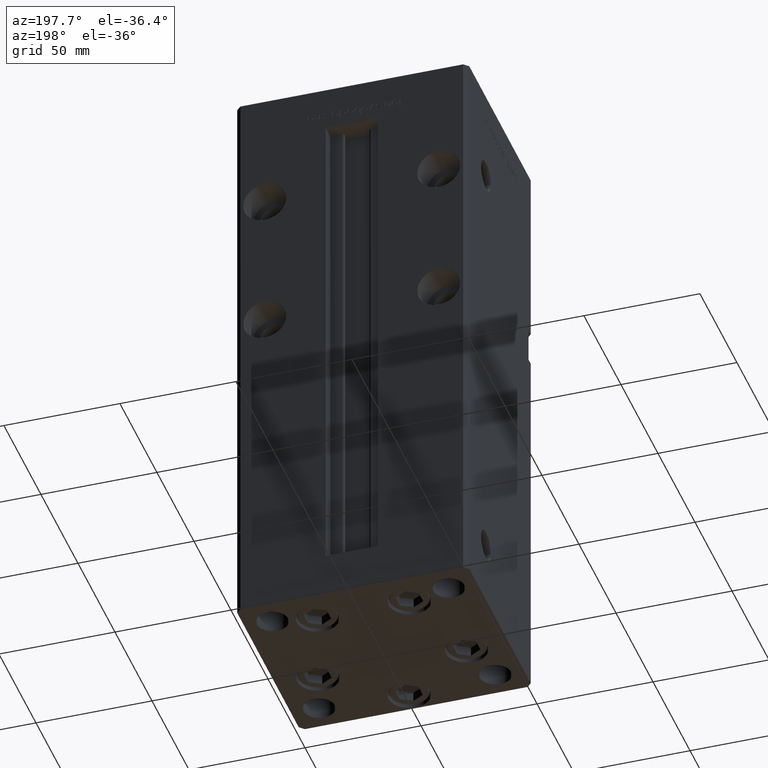
[diagram: clean part render]
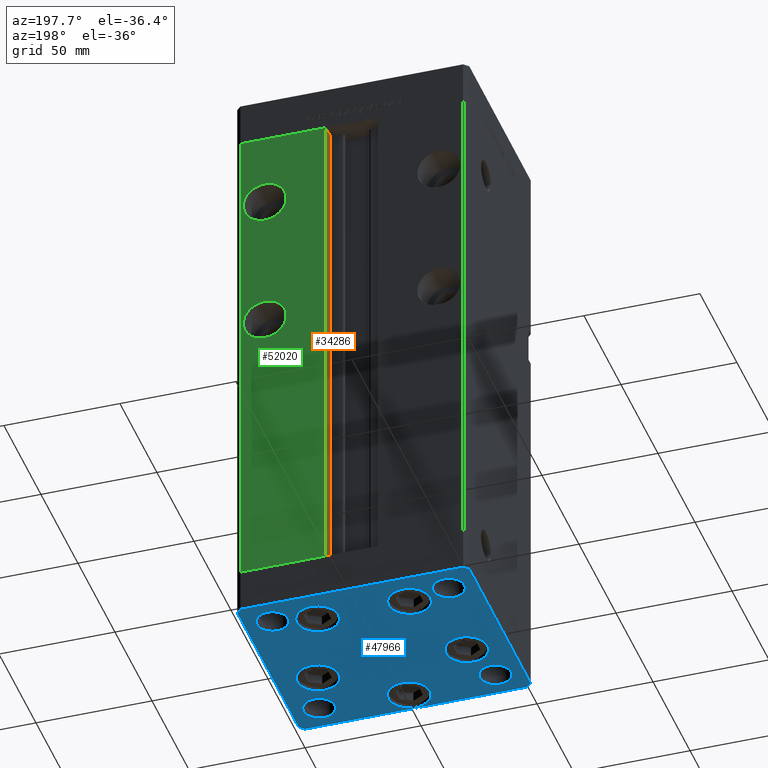
[diagram: same view with three faces highlighted in distinct colors, each labeled with its STEP entity id]
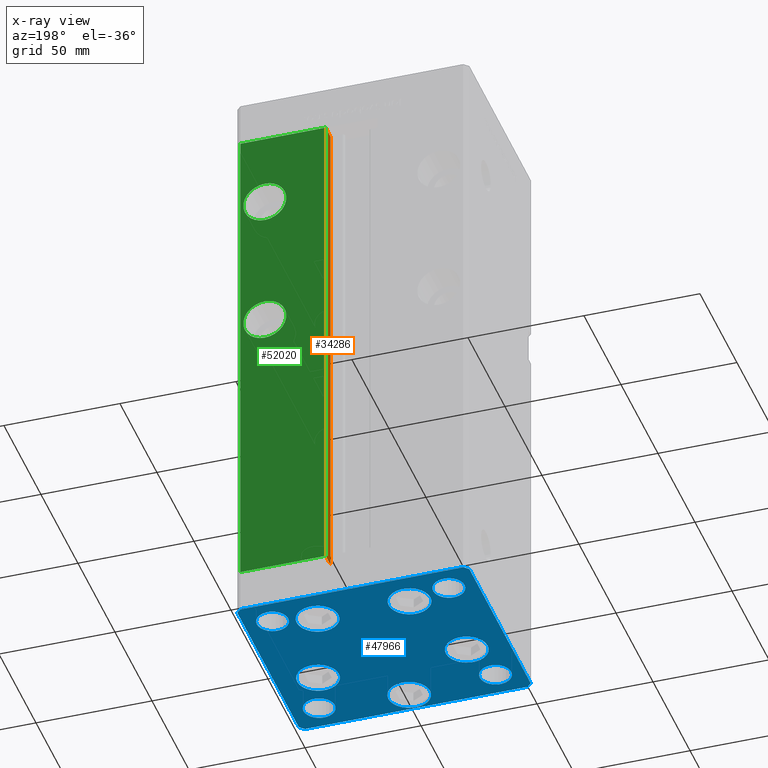
[diagram: x-ray of the same camera — body ghosted, the three highlighted faces saturated]
A machine part, auxiliary view with three faces highlighted in distinct colors.
The next image is the same camera in x-ray (body ghosted, the three faces saturated) — at least one of them is partly hidden behind the body in this view.
Their STEP definitions:

[orange] entity #34286 — the highlighted planar face has unit normal (1, 0, 0).
#1799 = DIRECTION ( 'NONE',  ( 1.000000000000000000, -0.000000000000000000, 0.000000000000000000 ) ) ;
#3196 = ORIENTED_EDGE ( 'NONE', *, *, #32009, .F. ) ;
#3388 = LINE ( 'NONE', #40242, #15107 ) ;
#3439 = ORIENTED_EDGE ( 'NONE', *, *, #50236, .F. ) ;
#3862 = CARTESIAN_POINT ( 'NONE',  ( 11.24999999999999645, 0.000000000000000000, 218.5000000000000000 ) ) ;
#5800 = DIRECTION ( 'NONE',  ( -0.000000000000000000, -0.000000000000000000, 1.000000000000000000 ) ) ;
#9306 = CARTESIAN_POINT ( 'NONE',  ( 11.24999999999999645, 37.00000000000000000, 0.000000000000000000 ) ) ;
#9577 = DIRECTION ( 'NONE',  ( 0.000000000000000000, 0.000000000000000000, -1.000000000000000000 ) ) ;
#10964 = CARTESIAN_POINT ( 'NONE',  ( 11.24999999999999645, 37.00000000000000000, 218.5000000000000000 ) ) ;
#15107 = VECTOR ( 'NONE', #44552, 1000.000000000000000 ) ;
#18041 = DIRECTION ( 'NONE',  ( -0.000000000000000000, -0.000000000000000000, 1.000000000000000000 ) ) ;
#19244 = VERTEX_POINT ( 'NONE', #44613 ) ;
#21302 = LINE ( 'NONE', #37730, #34794 ) ;
#22489 = FACE_OUTER_BOUND ( 'NONE', #27057, .T. ) ;
#22751 = CARTESIAN_POINT ( 'NONE',  ( 11.24999999999999645, 43.50000000000000000, 0.000000000000000000 ) ) ;
#24311 = DIRECTION ( 'NONE',  ( -0.000000000000000000, -1.000000000000000000, 0.000000000000000000 ) ) ;
#26713 = EDGE_CURVE ( 'NONE', #27888, #33254, #21302, .T. ) ;
#27057 = EDGE_LOOP ( 'NONE', ( #3439, #38258, #36643, #3196 ) ) ;
#27888 = VERTEX_POINT ( 'NONE', #41914 ) ;
#32009 = EDGE_CURVE ( 'NONE', #36398, #33254, #32392, .T. ) ;
#32392 = LINE ( 'NONE', #3862, #52849 ) ;
#33254 = VERTEX_POINT ( 'NONE', #10964 ) ;
#34286 = ADVANCED_FACE ( 'NONE', ( #22489 ), #38901, .F. ) ;
#34794 = VECTOR ( 'NONE', #18041, 1000.000000000000000 ) ;
#36398 = VERTEX_POINT ( 'NONE', #42803 ) ;
#36643 = ORIENTED_EDGE ( 'NONE', *, *, #26713, .T. ) ;
#37730 = CARTESIAN_POINT ( 'NONE',  ( 11.24999999999999645, 37.00000000000000000, 0.000000000000000000 ) ) ;
#38258 = ORIENTED_EDGE ( 'NONE', *, *, #43543, .F. ) ;
#38290 = AXIS2_PLACEMENT_3D ( 'NONE', #9306, #1799, #9577 ) ;
#38901 = PLANE ( 'NONE',  #38290 ) ;
#39405 = VECTOR ( 'NONE', #5800, 1000.000000000000000 ) ;
#40242 = CARTESIAN_POINT ( 'NONE',  ( 11.24999999999999645, 37.00000000000000000, 0.000000000000000000 ) ) ;
#41914 = CARTESIAN_POINT ( 'NONE',  ( 11.24999999999999645, 37.00000000000000000, 0.000000000000000000 ) ) ;
#42144 = LINE ( 'NONE', #22751, #39405 ) ;
#42803 = CARTESIAN_POINT ( 'NONE',  ( 11.24999999999998934, 43.50000000000000000, 218.5000000000000000 ) ) ;
#43543 = EDGE_CURVE ( 'NONE', #27888, #19244, #3388, .T. ) ;
#44552 = DIRECTION ( 'NONE',  ( 0.000000000000000000, 1.000000000000000000, 0.000000000000000000 ) ) ;
#44613 = CARTESIAN_POINT ( 'NONE',  ( 11.24999999999999645, 43.50000000000000000, 0.000000000000000000 ) ) ;
#50236 = EDGE_CURVE ( 'NONE', #19244, #36398, #42144, .T. ) ;
#52849 = VECTOR ( 'NONE', #24311, 1000.000000000000000 ) ;

[blue] entity #47966 — the highlighted planar face has unit normal (0, 0, -1).
#319 = DIRECTION ( 'NONE',  ( -0.7071067811865474617, 0.7071067811865474617, 0.000000000000000000 ) ) ;
#505 = CARTESIAN_POINT ( 'NONE',  ( -38.00000000000000000, 31.50000000000000000, 0.000000000000000000 ) ) ;
#579 = AXIS2_PLACEMENT_3D ( 'NONE', #505, #19136, #4267 ) ;
#1219 = EDGE_CURVE ( 'NONE', #25962, #12610, #10845, .T. ) ;
#1250 = CARTESIAN_POINT ( 'NONE',  ( 47.99999999999990763, 43.50000000000000000, 0.000000000000000000 ) ) ;
#1587 = EDGE_LOOP ( 'NONE', ( #51897, #44855 ) ) ;
#1605 = DIRECTION ( 'NONE',  ( 0.000000000000000000, -0.000000000000000000, -1.000000000000000000 ) ) ;
#1771 = ORIENTED_EDGE ( 'NONE', *, *, #30743, .T. ) ;
#2040 = EDGE_CURVE ( 'NONE', #22077, #27789, #10104, .T. ) ;
#2417 = EDGE_CURVE ( 'NONE', #37918, #21760, #38496, .T. ) ;
#2735 = DIRECTION ( 'NONE',  ( 1.000000000000000000, 0.000000000000000000, 0.000000000000000000 ) ) ;
#2951 = DIRECTION ( 'NONE',  ( 0.000000000000000000, -0.000000000000000000, -1.000000000000000000 ) ) ;
#2986 = LINE ( 'NONE', #40627, #29708 ) ;
#3029 = VERTEX_POINT ( 'NONE', #32537 ) ;
#3055 = CIRCLE ( 'NONE', #14192, 6.749999999999999112 ) ;
#3534 = ORIENTED_EDGE ( 'NONE', *, *, #22652, .T. ) ;
#3836 = CARTESIAN_POINT ( 'NONE',  ( 31.25000000000000000, 31.49999999999999289, 0.000000000000000000 ) ) ;
#3928 = VECTOR ( 'NONE', #44822, 1000.000000000000114 ) ;
#4172 = EDGE_CURVE ( 'NONE', #28916, #42118, #41209, .T. ) ;
#4256 = DIRECTION ( 'NONE',  ( 0.000000000000000000, -0.000000000000000000, -1.000000000000000000 ) ) ;
#4267 = DIRECTION ( 'NONE',  ( 1.000000000000000000, 0.000000000000000000, 0.000000000000000000 ) ) ;
#4350 = CARTESIAN_POINT ( 'NONE',  ( 49.99999999999992184, 41.49999999999998579, 0.000000000000000000 ) ) ;
#4492 = DIRECTION ( 'NONE',  ( -1.000000000000000000, -3.614007241618350743E-16, 0.000000000000000000 ) ) ;
#4741 = ORIENTED_EDGE ( 'NONE', *, *, #45130, .F. ) ;
#4800 = CARTESIAN_POINT ( 'NONE',  ( 28.82068048781372838, 27.62500000000000000, 0.000000000000000000 ) ) ;
#5380 = DIRECTION ( 'NONE',  ( 1.000000000000000000, 0.000000000000000000, 0.000000000000000000 ) ) ;
#5492 = FACE_BOUND ( 'NONE', #43728, .T. ) ;
#5578 = CARTESIAN_POINT ( 'NONE',  ( 4.163799117101000559E-15, -34.00000000000000000, 0.000000000000000000 ) ) ;
#5586 = AXIS2_PLACEMENT_3D ( 'NONE', #37508, #25136, #24874 ) ;
#5649 = VERTEX_POINT ( 'NONE', #32701 ) ;
#5865 = ORIENTED_EDGE ( 'NONE', *, *, #38256, .T. ) ;
#5907 = ORIENTED_EDGE ( 'NONE', *, *, #25629, .T. ) ;
#6481 = CIRCLE ( 'NONE', #30581, 6.749999999999999112 ) ;
#6820 = DIRECTION ( 'NONE',  ( 0.000000000000000000, -0.000000000000000000, -1.000000000000000000 ) ) ;
#7417 = CARTESIAN_POINT ( 'NONE',  ( -50.00000000000000000, -41.50000000000000000, 0.000000000000000000 ) ) ;
#7973 = EDGE_CURVE ( 'NONE', #12610, #25962, #12823, .T. ) ;
#8535 = EDGE_CURVE ( 'NONE', #12633, #23352, #37809, .T. ) ;
#8647 = EDGE_CURVE ( 'NONE', #51965, #33657, #23224, .T. ) ;
#8786 = DIRECTION ( 'NONE',  ( -0.7071067811865463515, -0.7071067811865487940, 0.000000000000000000 ) ) ;
#8897 = DIRECTION ( 'NONE',  ( 0.7071067811865463515, 0.7071067811865487940, 0.000000000000000000 ) ) ;
#8922 = VERTEX_POINT ( 'NONE', #40525 ) ;
#9037 = CIRCLE ( 'NONE', #47772, 9.000000000000000000 ) ;
#9060 = DIRECTION ( 'NONE',  ( 0.000000000000000000, -0.000000000000000000, -1.000000000000000000 ) ) ;
#9527 = FACE_BOUND ( 'NONE', #21157, .T. ) ;
#9812 = ORIENTED_EDGE ( 'NONE', *, *, #18538, .F. ) ;
#10104 = CIRCLE ( 'NONE', #17845, 6.749999999999999112 ) ;
#10187 = CARTESIAN_POINT ( 'NONE',  ( -31.25000000000000000, 31.50000000000000000, 0.000000000000000000 ) ) ;
#10230 = CARTESIAN_POINT ( 'NONE',  ( -28.82068048781373548, 27.62499999999999645, 0.000000000000000000 ) ) ;
#10581 = ORIENTED_EDGE ( 'NONE', *, *, #8535, .T. ) ;
#10718 = LINE ( 'NONE', #30932, #51223 ) ;
#10780 = AXIS2_PLACEMENT_3D ( 'NONE', #15669, #6820, #39654 ) ;
#10801 = ORIENTED_EDGE ( 'NONE', *, *, #7973, .T. ) ;
#10845 = CIRCLE ( 'NONE', #51286, 6.749999999999999112 ) ;
#11275 = CARTESIAN_POINT ( 'NONE',  ( -37.99999999999999289, -31.50000000000000000, 0.000000000000000000 ) ) ;
#11622 = AXIS2_PLACEMENT_3D ( 'NONE', #42492, #18238, #46553 ) ;
#11816 = DIRECTION ( 'NONE',  ( 1.000000000000000000, 0.000000000000000000, 0.000000000000000000 ) ) ;
#12610 = VERTEX_POINT ( 'NONE', #27676 ) ;
#12633 = VERTEX_POINT ( 'NONE', #40048 ) ;
#12806 = ORIENTED_EDGE ( 'NONE', *, *, #32975, .F. ) ;
#12823 = CIRCLE ( 'NONE', #48157, 6.749999999999999112 ) ;
#13044 = DIRECTION ( 'NONE',  ( 1.000000000000000000, 0.000000000000000000, 0.000000000000000000 ) ) ;
#13524 = CARTESIAN_POINT ( 'NONE',  ( 9.000000000000003553, -34.00000000000000000, 0.000000000000000000 ) ) ;
#13819 = DIRECTION ( 'NONE',  ( -0.000000000000000000, 0.000000000000000000, 1.000000000000000000 ) ) ;
#13836 = VERTEX_POINT ( 'NONE', #28733 ) ;
#14106 = VECTOR ( 'NONE', #8786, 1000.000000000000000 ) ;
#14192 = AXIS2_PLACEMENT_3D ( 'NONE', #24382, #32460, #13044 ) ;
#14706 = DIRECTION ( 'NONE',  ( -1.003213576468515193E-15, 1.000000000000000000, 0.000000000000000000 ) ) ;
#14781 = AXIS2_PLACEMENT_3D ( 'NONE', #49909, #16754, #37237 ) ;
#14889 = VECTOR ( 'NONE', #4492, 1000.000000000000000 ) ;
#14969 = LINE ( 'NONE', #18737, #33126 ) ;
#15446 = VERTEX_POINT ( 'NONE', #19809 ) ;
#15669 = CARTESIAN_POINT ( 'NONE',  ( 4.163799117101000559E-15, -34.00000000000000000, 0.000000000000000000 ) ) ;
#16317 = VERTEX_POINT ( 'NONE', #4800 ) ;
#16705 = CIRCLE ( 'NONE', #5586, 8.999999999999998224 ) ;
#16754 = DIRECTION ( 'NONE',  ( -0.000000000000000000, 0.000000000000000000, 1.000000000000000000 ) ) ;
#16849 = LINE ( 'NONE', #49725, #14106 ) ;
#17072 = CARTESIAN_POINT ( 'NONE',  ( 49.99999999999992184, 41.49999999999998579, 0.000000000000000000 ) ) ;
#17414 = DIRECTION ( 'NONE',  ( 1.000000000000000000, 0.000000000000000000, 0.000000000000000000 ) ) ;
#17446 = EDGE_CURVE ( 'NONE', #29965, #16317, #49178, .T. ) ;
#17540 = CARTESIAN_POINT ( 'NONE',  ( 47.99999999999990763, 43.50000000000000000, 0.000000000000000000 ) ) ;
#17578 = FACE_BOUND ( 'NONE', #18207, .T. ) ;
#17845 = AXIS2_PLACEMENT_3D ( 'NONE', #35238, #46836, #5380 ) ;
#18207 = EDGE_LOOP ( 'NONE', ( #36028, #23358 ) ) ;
#18238 = DIRECTION ( 'NONE',  ( -0.000000000000000000, 0.000000000000000000, 1.000000000000000000 ) ) ;
#18538 = EDGE_CURVE ( 'NONE', #44311, #48291, #27732, .T. ) ;
#18737 = CARTESIAN_POINT ( 'NONE',  ( 50.00000000000000000, -41.49999999999999289, 0.000000000000000000 ) ) ;
#19050 = AXIS2_PLACEMENT_3D ( 'NONE', #39828, #43878, #11816 ) ;
#19136 = DIRECTION ( 'NONE',  ( -0.000000000000000000, 0.000000000000000000, 1.000000000000000000 ) ) ;
#19373 = CARTESIAN_POINT ( 'NONE',  ( 23.05550741379014923, -11.33333333333333037, 0.000000000000000000 ) ) ;
#19809 = CARTESIAN_POINT ( 'NONE',  ( 50.00000000000000000, -41.49999999999999289, 0.000000000000000000 ) ) ;
#20338 = EDGE_LOOP ( 'NONE', ( #5907, #46789 ) ) ;
#20944 = CARTESIAN_POINT ( 'NONE',  ( -19.82068048781373903, 27.62499999999999645, 0.000000000000000000 ) ) ;
#21157 = EDGE_LOOP ( 'NONE', ( #46095, #22016 ) ) ;
#21640 = FACE_BOUND ( 'NONE', #21673, .T. ) ;
#21673 = EDGE_LOOP ( 'NONE', ( #27283, #10581 ) ) ;
#21760 = VERTEX_POINT ( 'NONE', #13524 ) ;
#22016 = ORIENTED_EDGE ( 'NONE', *, *, #37958, .T. ) ;
#22077 = VERTEX_POINT ( 'NONE', #39833 ) ;
#22095 = VERTEX_POINT ( 'NONE', #38758 ) ;
#22109 = EDGE_LOOP ( 'NONE', ( #10801, #45298 ) ) ;
#22136 = CARTESIAN_POINT ( 'NONE',  ( 10.82068048781373193, 27.62500000000000000, 0.000000000000000000 ) ) ;
#22169 = FACE_BOUND ( 'NONE', #22109, .T. ) ;
#22652 = EDGE_CURVE ( 'NONE', #42118, #40726, #25202, .T. ) ;
#23098 = CARTESIAN_POINT ( 'NONE',  ( -44.74999999999999289, -31.50000000000000000, 0.000000000000000000 ) ) ;
#23186 = EDGE_CURVE ( 'NONE', #8922, #15446, #45791, .T. ) ;
#23224 = CIRCLE ( 'NONE', #26650, 9.000000000000001776 ) ;
#23352 = VERTEX_POINT ( 'NONE', #40370 ) ;
#23358 = ORIENTED_EDGE ( 'NONE', *, *, #42258, .T. ) ;
#24382 = CARTESIAN_POINT ( 'NONE',  ( 38.00000000000000000, 31.49999999999999289, 0.000000000000000000 ) ) ;
#24874 = DIRECTION ( 'NONE',  ( 1.000000000000000000, 0.000000000000000000, 0.000000000000000000 ) ) ;
#24937 = DIRECTION ( 'NONE',  ( 0.000000000000000000, -0.000000000000000000, -1.000000000000000000 ) ) ;
#25136 = DIRECTION ( 'NONE',  ( 0.000000000000000000, -0.000000000000000000, -1.000000000000000000 ) ) ;
#25198 = ORIENTED_EDGE ( 'NONE', *, *, #37700, .T. ) ;
#25202 = LINE ( 'NONE', #1250, #14889 ) ;
#25226 = CARTESIAN_POINT ( 'NONE',  ( -10.82068048781373903, 27.62499999999999645, 0.000000000000000000 ) ) ;
#25262 = DIRECTION ( 'NONE',  ( 0.000000000000000000, -0.000000000000000000, -1.000000000000000000 ) ) ;
#25356 = AXIS2_PLACEMENT_3D ( 'NONE', #32054, #31523, #2735 ) ;
#25629 = EDGE_CURVE ( 'NONE', #33657, #51965, #35614, .T. ) ;
#25729 = CARTESIAN_POINT ( 'NONE',  ( -32.05550741379015278, -11.33333333333333925, 0.000000000000000000 ) ) ;
#25962 = VERTEX_POINT ( 'NONE', #23098 ) ;
#25964 = FACE_BOUND ( 'NONE', #31082, .T. ) ;
#26215 = CARTESIAN_POINT ( 'NONE',  ( -8.999999999999996447, -34.00000000000000000, 0.000000000000000000 ) ) ;
#26385 = CIRCLE ( 'NONE', #579, 6.749999999999999112 ) ;
#26650 = AXIS2_PLACEMENT_3D ( 'NONE', #36550, #4256, #33042 ) ;
#26946 = VECTOR ( 'NONE', #8897, 1000.000000000000000 ) ;
#27004 = DIRECTION ( 'NONE',  ( 0.000000000000000000, -0.000000000000000000, -1.000000000000000000 ) ) ;
#27283 = ORIENTED_EDGE ( 'NONE', *, *, #40577, .T. ) ;
#27676 = CARTESIAN_POINT ( 'NONE',  ( -31.24999999999999289, -31.50000000000000000, 0.000000000000000000 ) ) ;
#27710 = DIRECTION ( 'NONE',  ( 1.000000000000000000, 0.000000000000000000, 0.000000000000000000 ) ) ;
#27732 = CIRCLE ( 'NONE', #14781, 6.749999999999999112 ) ;
#27789 = VERTEX_POINT ( 'NONE', #28496 ) ;
#28496 = CARTESIAN_POINT ( 'NONE',  ( 44.75000000000000000, -31.49999999999999289, 0.000000000000000000 ) ) ;
#28664 = LINE ( 'NONE', #7417, #3928 ) ;
#28669 = EDGE_CURVE ( 'NONE', #15446, #28916, #14969, .T. ) ;
#28733 = CARTESIAN_POINT ( 'NONE',  ( -50.00000000000000000, -41.50000000000000000, 0.000000000000000000 ) ) ;
#28853 = CIRCLE ( 'NONE', #10780, 9.000000000000000000 ) ;
#28916 = VERTEX_POINT ( 'NONE', #17072 ) ;
#29708 = VECTOR ( 'NONE', #32041, 1000.000000000000000 ) ;
#29908 = CARTESIAN_POINT ( 'NONE',  ( 47.99999999999999289, -43.50000000000001421, 0.000000000000000000 ) ) ;
#29965 = VERTEX_POINT ( 'NONE', #22136 ) ;
#30370 = VERTEX_POINT ( 'NONE', #3836 ) ;
#30530 = DIRECTION ( 'NONE',  ( 1.000000000000000000, 0.000000000000000000, 0.000000000000000000 ) ) ;
#30581 = AXIS2_PLACEMENT_3D ( 'NONE', #34669, #1605, #50594 ) ;
#30743 = EDGE_CURVE ( 'NONE', #40726, #5649, #16849, .T. ) ;
#30778 = DIRECTION ( 'NONE',  ( 1.000000000000000000, 0.000000000000000000, 0.000000000000000000 ) ) ;
#30932 = CARTESIAN_POINT ( 'NONE',  ( -47.99999999999999289, -43.50000000000001421, 0.000000000000000000 ) ) ;
#31082 = EDGE_LOOP ( 'NONE', ( #12806, #51901 ) ) ;
#31456 = DIRECTION ( 'NONE',  ( 1.000000000000000000, 0.000000000000000000, 0.000000000000000000 ) ) ;
#31523 = DIRECTION ( 'NONE',  ( 0.000000000000000000, -0.000000000000000000, -1.000000000000000000 ) ) ;
#31541 = EDGE_CURVE ( 'NONE', #37184, #53126, #46843, .T. ) ;
#32041 = DIRECTION ( 'NONE',  ( 8.360113137237628665E-17, -1.000000000000000000, 0.000000000000000000 ) ) ;
#32054 = CARTESIAN_POINT ( 'NONE',  ( -19.82068048781373903, 27.62499999999999645, 0.000000000000000000 ) ) ;
#32460 = DIRECTION ( 'NONE',  ( -0.000000000000000000, 0.000000000000000000, 1.000000000000000000 ) ) ;
#32537 = CARTESIAN_POINT ( 'NONE',  ( 44.75000000000000000, 31.49999999999999289, 0.000000000000000000 ) ) ;
#32701 = CARTESIAN_POINT ( 'NONE',  ( -50.00000000000000711, 41.49999999999995026, 0.000000000000000000 ) ) ;
#32975 = EDGE_CURVE ( 'NONE', #3029, #30370, #3055, .T. ) ;
#33042 = DIRECTION ( 'NONE',  ( 1.000000000000000000, 0.000000000000000000, 0.000000000000000000 ) ) ;
#33126 = VECTOR ( 'NONE', #14706, 1000.000000000000000 ) ;
#33175 = ORIENTED_EDGE ( 'NONE', *, *, #23186, .T. ) ;
#33329 = AXIS2_PLACEMENT_3D ( 'NONE', #50732, #13819, #30530 ) ;
#33440 = ORIENTED_EDGE ( 'NONE', *, *, #2040, .T. ) ;
#33649 = EDGE_CURVE ( 'NONE', #5649, #13836, #2986, .T. ) ;
#33657 = VERTEX_POINT ( 'NONE', #19373 ) ;
#34283 = PLANE ( 'NONE',  #33329 ) ;
#34669 = CARTESIAN_POINT ( 'NONE',  ( 38.00000000000000000, -31.49999999999999289, 0.000000000000000000 ) ) ;
#34848 = CARTESIAN_POINT ( 'NONE',  ( -48.00000000000000711, 43.49999999999996447, 0.000000000000000000 ) ) ;
#35238 = CARTESIAN_POINT ( 'NONE',  ( 38.00000000000000000, -31.49999999999999289, 0.000000000000000000 ) ) ;
#35614 = CIRCLE ( 'NONE', #45074, 9.000000000000001776 ) ;
#35677 = CARTESIAN_POINT ( 'NONE',  ( 41.05550741379015278, -11.33333333333332860, 0.000000000000000000 ) ) ;
#35902 = AXIS2_PLACEMENT_3D ( 'NONE', #5578, #50551, #46769 ) ;
#36028 = ORIENTED_EDGE ( 'NONE', *, *, #31541, .T. ) ;
#36550 = CARTESIAN_POINT ( 'NONE',  ( 32.05550741379015278, -11.33333333333333037, 0.000000000000000000 ) ) ;
#37089 = CARTESIAN_POINT ( 'NONE',  ( -44.75000000000000000, 31.50000000000000000, 0.000000000000000000 ) ) ;
#37184 = VERTEX_POINT ( 'NONE', #10230 ) ;
#37237 = DIRECTION ( 'NONE',  ( 1.000000000000000000, 0.000000000000000000, 0.000000000000000000 ) ) ;
#37508 = CARTESIAN_POINT ( 'NONE',  ( 19.82068048781373193, 27.62500000000000000, 0.000000000000000000 ) ) ;
#37700 = EDGE_CURVE ( 'NONE', #13836, #22095, #28664, .T. ) ;
#37809 = CIRCLE ( 'NONE', #42115, 9.000000000000001776 ) ;
#37918 = VERTEX_POINT ( 'NONE', #26215 ) ;
#37958 = EDGE_CURVE ( 'NONE', #21760, #37918, #28853, .T. ) ;
#38120 = CARTESIAN_POINT ( 'NONE',  ( -37.99999999999999289, -31.50000000000000000, 0.000000000000000000 ) ) ;
#38189 = EDGE_CURVE ( 'NONE', #30370, #3029, #46915, .T. ) ;
#38191 = EDGE_CURVE ( 'NONE', #27789, #22077, #6481, .T. ) ;
#38256 = EDGE_CURVE ( 'NONE', #22095, #8922, #10718, .T. ) ;
#38326 = FACE_OUTER_BOUND ( 'NONE', #44433, .T. ) ;
#38496 = CIRCLE ( 'NONE', #35902, 9.000000000000000000 ) ;
#38758 = CARTESIAN_POINT ( 'NONE',  ( -47.99999999999999289, -43.50000000000001421, 0.000000000000000000 ) ) ;
#38851 = FACE_BOUND ( 'NONE', #1587, .T. ) ;
#39106 = CARTESIAN_POINT ( 'NONE',  ( 32.05550741379015278, -11.33333333333333037, 0.000000000000000000 ) ) ;
#39654 = DIRECTION ( 'NONE',  ( 1.000000000000000000, 0.000000000000000000, 0.000000000000000000 ) ) ;
#39828 = CARTESIAN_POINT ( 'NONE',  ( 19.82068048781373193, 27.62500000000000000, 0.000000000000000000 ) ) ;
#39833 = CARTESIAN_POINT ( 'NONE',  ( 31.25000000000000000, -31.49999999999999289, 0.000000000000000000 ) ) ;
#40048 = CARTESIAN_POINT ( 'NONE',  ( -23.05550741379014923, -11.33333333333333748, 0.000000000000000000 ) ) ;
#40370 = CARTESIAN_POINT ( 'NONE',  ( -41.05550741379015278, -11.33333333333333925, 0.000000000000000000 ) ) ;
#40525 = CARTESIAN_POINT ( 'NONE',  ( 47.99999999999999289, -43.50000000000001421, 0.000000000000000000 ) ) ;
#40577 = EDGE_CURVE ( 'NONE', #23352, #12633, #43404, .T. ) ;
#40627 = CARTESIAN_POINT ( 'NONE',  ( -50.00000000000000711, 41.49999999999995026, 0.000000000000000000 ) ) ;
#40726 = VERTEX_POINT ( 'NONE', #34848 ) ;
#40935 = EDGE_CURVE ( 'NONE', #16317, #29965, #16705, .T. ) ;
#41078 = ORIENTED_EDGE ( 'NONE', *, *, #33649, .T. ) ;
#41209 = LINE ( 'NONE', #4350, #42810 ) ;
#41374 = DIRECTION ( 'NONE',  ( 1.000000000000000000, 0.000000000000000000, 0.000000000000000000 ) ) ;
#41615 = ORIENTED_EDGE ( 'NONE', *, *, #4172, .T. ) ;
#42115 = AXIS2_PLACEMENT_3D ( 'NONE', #48177, #51674, #43308 ) ;
#42118 = VERTEX_POINT ( 'NONE', #17540 ) ;
#42258 = EDGE_CURVE ( 'NONE', #53126, #37184, #9037, .T. ) ;
#42365 = FACE_BOUND ( 'NONE', #48133, .T. ) ;
#42492 = CARTESIAN_POINT ( 'NONE',  ( 38.00000000000000000, 31.49999999999999289, 0.000000000000000000 ) ) ;
#42810 = VECTOR ( 'NONE', #319, 1000.000000000000114 ) ;
#43308 = DIRECTION ( 'NONE',  ( 1.000000000000000000, 0.000000000000000000, 0.000000000000000000 ) ) ;
#43404 = CIRCLE ( 'NONE', #50295, 9.000000000000001776 ) ;
#43728 = EDGE_LOOP ( 'NONE', ( #4741, #9812 ) ) ;
#43878 = DIRECTION ( 'NONE',  ( 0.000000000000000000, -0.000000000000000000, -1.000000000000000000 ) ) ;
#44311 = VERTEX_POINT ( 'NONE', #37089 ) ;
#44433 = EDGE_LOOP ( 'NONE', ( #25198, #5865, #33175, #45725, #41615, #3534, #1771, #41078 ) ) ;
#44822 = DIRECTION ( 'NONE',  ( 0.7071067811865474617, -0.7071067811865474617, 0.000000000000000000 ) ) ;
#44855 = ORIENTED_EDGE ( 'NONE', *, *, #40935, .T. ) ;
#45074 = AXIS2_PLACEMENT_3D ( 'NONE', #39106, #27004, #30778 ) ;
#45130 = EDGE_CURVE ( 'NONE', #48291, #44311, #26385, .T. ) ;
#45298 = ORIENTED_EDGE ( 'NONE', *, *, #1219, .T. ) ;
#45725 = ORIENTED_EDGE ( 'NONE', *, *, #28669, .T. ) ;
#45791 = LINE ( 'NONE', #29908, #26946 ) ;
#46095 = ORIENTED_EDGE ( 'NONE', *, *, #2417, .T. ) ;
#46425 = FACE_BOUND ( 'NONE', #20338, .T. ) ;
#46553 = DIRECTION ( 'NONE',  ( 1.000000000000000000, 0.000000000000000000, 0.000000000000000000 ) ) ;
#46769 = DIRECTION ( 'NONE',  ( 1.000000000000000000, 0.000000000000000000, 0.000000000000000000 ) ) ;
#46789 = ORIENTED_EDGE ( 'NONE', *, *, #8647, .T. ) ;
#46836 = DIRECTION ( 'NONE',  ( 0.000000000000000000, -0.000000000000000000, -1.000000000000000000 ) ) ;
#46843 = CIRCLE ( 'NONE', #25356, 9.000000000000000000 ) ;
#46915 = CIRCLE ( 'NONE', #11622, 6.749999999999999112 ) ;
#47695 = ORIENTED_EDGE ( 'NONE', *, *, #38191, .T. ) ;
#47772 = AXIS2_PLACEMENT_3D ( 'NONE', #20944, #25262, #17414 ) ;
#47966 = ADVANCED_FACE ( 'NONE', ( #17578, #38851, #46425, #9527, #21640, #25964, #42365, #5492, #38326, #22169 ), #34283, .T. ) ;
#48133 = EDGE_LOOP ( 'NONE', ( #47695, #33440 ) ) ;
#48157 = AXIS2_PLACEMENT_3D ( 'NONE', #38120, #9060, #41374 ) ;
#48177 = CARTESIAN_POINT ( 'NONE',  ( -32.05550741379015278, -11.33333333333333925, 0.000000000000000000 ) ) ;
#48291 = VERTEX_POINT ( 'NONE', #10187 ) ;
#49178 = CIRCLE ( 'NONE', #19050, 8.999999999999998224 ) ;
#49442 = DIRECTION ( 'NONE',  ( 1.000000000000000000, 0.000000000000000000, 0.000000000000000000 ) ) ;
#49725 = CARTESIAN_POINT ( 'NONE',  ( -48.00000000000000711, 43.49999999999996447, 0.000000000000000000 ) ) ;
#49909 = CARTESIAN_POINT ( 'NONE',  ( -38.00000000000000000, 31.50000000000000000, 0.000000000000000000 ) ) ;
#50295 = AXIS2_PLACEMENT_3D ( 'NONE', #25729, #24937, #49442 ) ;
#50551 = DIRECTION ( 'NONE',  ( 0.000000000000000000, -0.000000000000000000, -1.000000000000000000 ) ) ;
#50594 = DIRECTION ( 'NONE',  ( 1.000000000000000000, 0.000000000000000000, 0.000000000000000000 ) ) ;
#50732 = CARTESIAN_POINT ( 'NONE',  ( 0.000000000000000000, 0.000000000000000000, 0.000000000000000000 ) ) ;
#51223 = VECTOR ( 'NONE', #31456, 1000.000000000000000 ) ;
#51286 = AXIS2_PLACEMENT_3D ( 'NONE', #11275, #2951, #27710 ) ;
#51674 = DIRECTION ( 'NONE',  ( 0.000000000000000000, -0.000000000000000000, -1.000000000000000000 ) ) ;
#51897 = ORIENTED_EDGE ( 'NONE', *, *, #17446, .T. ) ;
#51901 = ORIENTED_EDGE ( 'NONE', *, *, #38189, .F. ) ;
#51965 = VERTEX_POINT ( 'NONE', #35677 ) ;
#53126 = VERTEX_POINT ( 'NONE', #25226 ) ;

[green] entity #52020 — the highlighted planar face has unit normal (0, -1, 0).
#410 = CARTESIAN_POINT ( 'NONE',  ( -11.24999999999999645, 43.50000000000000000, 218.5000000000000000 ) ) ;
#902 = CARTESIAN_POINT ( 'NONE',  ( -11.24999999999999645, 43.50000000000000000, 218.5000000000000000 ) ) ;
#2854 = ORIENTED_EDGE ( 'NONE', *, *, #4962, .F. ) ;
#3517 = LINE ( 'NONE', #36331, #42411 ) ;
#3892 = AXIS2_PLACEMENT_3D ( 'NONE', #36949, #29413, #12968 ) ;
#3911 = ORIENTED_EDGE ( 'NONE', *, *, #32130, .F. ) ;
#4700 = DIRECTION ( 'NONE',  ( 0.000000000000000000, -1.000000000000000000, 0.000000000000000000 ) ) ;
#4962 = EDGE_CURVE ( 'NONE', #34244, #6137, #12748, .T. ) ;
#5800 = DIRECTION ( 'NONE',  ( -0.000000000000000000, -0.000000000000000000, 1.000000000000000000 ) ) ;
#5948 = CARTESIAN_POINT ( 'NONE',  ( 48.00000000000000711, 43.50000000000000000, 218.5000000000000000 ) ) ;
#6137 = VERTEX_POINT ( 'NONE', #9712 ) ;
#6485 = CARTESIAN_POINT ( 'NONE',  ( 37.50000000000000000, 43.50000000000000000, 135.7500000000000000 ) ) ;
#7881 = AXIS2_PLACEMENT_3D ( 'NONE', #8690, #45316, #28901 ) ;
#8687 = DIRECTION ( 'NONE',  ( 1.000000000000000000, 0.000000000000000000, 0.000000000000000000 ) ) ;
#8690 = CARTESIAN_POINT ( 'NONE',  ( 37.50000000000000000, 43.50000000000000000, 126.5000000000000000 ) ) ;
#9712 = CARTESIAN_POINT ( 'NONE',  ( 37.50000000000000000, 43.50000000000000000, 177.2500000000000000 ) ) ;
#9803 = VERTEX_POINT ( 'NONE', #5948 ) ;
#10079 = LINE ( 'NONE', #18399, #14965 ) ;
#10188 = VERTEX_POINT ( 'NONE', #30064 ) ;
#12227 = FACE_OUTER_BOUND ( 'NONE', #23040, .T. ) ;
#12748 = CIRCLE ( 'NONE', #17044, 9.250000000000008882 ) ;
#12968 = DIRECTION ( 'NONE',  ( 0.000000000000000000, 0.000000000000000000, -1.000000000000000000 ) ) ;
#14645 = DIRECTION ( 'NONE',  ( -0.000000000000000000, -0.000000000000000000, -1.000000000000000000 ) ) ;
#14965 = VECTOR ( 'NONE', #14645, 1000.000000000000000 ) ;
#15108 = VERTEX_POINT ( 'NONE', #52219 ) ;
#16768 = CARTESIAN_POINT ( 'NONE',  ( 37.50000000000000000, 43.50000000000000000, 186.5000000000000000 ) ) ;
#17044 = AXIS2_PLACEMENT_3D ( 'NONE', #16768, #33216, #44546 ) ;
#17574 = EDGE_CURVE ( 'NONE', #10188, #51662, #20783, .T. ) ;
#18399 = CARTESIAN_POINT ( 'NONE',  ( 48.00000000000000711, 43.50000000000000000, 218.5000000000000000 ) ) ;
#19244 = VERTEX_POINT ( 'NONE', #44613 ) ;
#20783 = CIRCLE ( 'NONE', #7881, 9.250000000000008882 ) ;
#22751 = CARTESIAN_POINT ( 'NONE',  ( 11.24999999999999645, 43.50000000000000000, 0.000000000000000000 ) ) ;
#23040 = EDGE_LOOP ( 'NONE', ( #35465, #32678, #43131, #31554 ) ) ;
#23362 = EDGE_CURVE ( 'NONE', #15108, #19244, #3517, .T. ) ;
#26352 = ORIENTED_EDGE ( 'NONE', *, *, #38004, .F. ) ;
#27098 = CIRCLE ( 'NONE', #3892, 9.250000000000008882 ) ;
#27816 = DIRECTION ( 'NONE',  ( 0.000000000000000000, 0.000000000000000000, 1.000000000000000000 ) ) ;
#28668 = PLANE ( 'NONE',  #29998 ) ;
#28901 = DIRECTION ( 'NONE',  ( 0.000000000000000000, 0.000000000000000000, -1.000000000000000000 ) ) ;
#29413 = DIRECTION ( 'NONE',  ( 0.000000000000000000, 1.000000000000000000, -0.000000000000000000 ) ) ;
#29634 = EDGE_CURVE ( 'NONE', #9803, #15108, #10079, .T. ) ;
#29998 = AXIS2_PLACEMENT_3D ( 'NONE', #410, #4700, #53186 ) ;
#30064 = CARTESIAN_POINT ( 'NONE',  ( 37.50000000000000000, 43.50000000000000000, 117.2500000000000000 ) ) ;
#30733 = EDGE_LOOP ( 'NONE', ( #2854, #26352 ) ) ;
#31554 = ORIENTED_EDGE ( 'NONE', *, *, #29634, .T. ) ;
#32130 = EDGE_CURVE ( 'NONE', #51662, #10188, #27098, .T. ) ;
#32678 = ORIENTED_EDGE ( 'NONE', *, *, #50236, .T. ) ;
#33216 = DIRECTION ( 'NONE',  ( 0.000000000000000000, 1.000000000000000000, 0.000000000000000000 ) ) ;
#34244 = VERTEX_POINT ( 'NONE', #38636 ) ;
#35465 = ORIENTED_EDGE ( 'NONE', *, *, #23362, .T. ) ;
#36331 = CARTESIAN_POINT ( 'NONE',  ( -11.24999999999999645, 43.50000000000000000, 0.000000000000000000 ) ) ;
#36398 = VERTEX_POINT ( 'NONE', #42803 ) ;
#36949 = CARTESIAN_POINT ( 'NONE',  ( 37.50000000000000000, 43.50000000000000000, 126.5000000000000000 ) ) ;
#38004 = EDGE_CURVE ( 'NONE', #6137, #34244, #48630, .T. ) ;
#38636 = CARTESIAN_POINT ( 'NONE',  ( 37.50000000000000000, 43.50000000000000000, 195.7500000000000000 ) ) ;
#39405 = VECTOR ( 'NONE', #5800, 1000.000000000000000 ) ;
#39920 = DIRECTION ( 'NONE',  ( 0.000000000000000000, 1.000000000000000000, 0.000000000000000000 ) ) ;
#40973 = VECTOR ( 'NONE', #8687, 1000.000000000000000 ) ;
#41519 = LINE ( 'NONE', #902, #40973 ) ;
#41731 = EDGE_LOOP ( 'NONE', ( #3911, #48662 ) ) ;
#42144 = LINE ( 'NONE', #22751, #39405 ) ;
#42411 = VECTOR ( 'NONE', #53041, 1000.000000000000000 ) ;
#42803 = CARTESIAN_POINT ( 'NONE',  ( 11.24999999999998934, 43.50000000000000000, 218.5000000000000000 ) ) ;
#43131 = ORIENTED_EDGE ( 'NONE', *, *, #45687, .T. ) ;
#44546 = DIRECTION ( 'NONE',  ( 0.000000000000000000, 0.000000000000000000, 1.000000000000000000 ) ) ;
#44613 = CARTESIAN_POINT ( 'NONE',  ( 11.24999999999999645, 43.50000000000000000, 0.000000000000000000 ) ) ;
#45316 = DIRECTION ( 'NONE',  ( 0.000000000000000000, 1.000000000000000000, -0.000000000000000000 ) ) ;
#45687 = EDGE_CURVE ( 'NONE', #36398, #9803, #41519, .T. ) ;
#48546 = CARTESIAN_POINT ( 'NONE',  ( 37.50000000000000000, 43.50000000000000000, 186.5000000000000000 ) ) ;
#48630 = CIRCLE ( 'NONE', #52927, 9.250000000000008882 ) ;
#48662 = ORIENTED_EDGE ( 'NONE', *, *, #17574, .F. ) ;
#49149 = FACE_BOUND ( 'NONE', #41731, .T. ) ;
#49935 = FACE_BOUND ( 'NONE', #30733, .T. ) ;
#50236 = EDGE_CURVE ( 'NONE', #19244, #36398, #42144, .T. ) ;
#51662 = VERTEX_POINT ( 'NONE', #6485 ) ;
#52020 = ADVANCED_FACE ( 'NONE', ( #49149, #49935, #12227 ), #28668, .F. ) ;
#52219 = CARTESIAN_POINT ( 'NONE',  ( 48.00000000000000711, 43.50000000000000000, 0.000000000000000000 ) ) ;
#52927 = AXIS2_PLACEMENT_3D ( 'NONE', #48546, #39920, #27816 ) ;
#53041 = DIRECTION ( 'NONE',  ( -1.000000000000000000, 0.000000000000000000, 0.000000000000000000 ) ) ;
#53186 = DIRECTION ( 'NONE',  ( 0.000000000000000000, -0.000000000000000000, -1.000000000000000000 ) ) ;